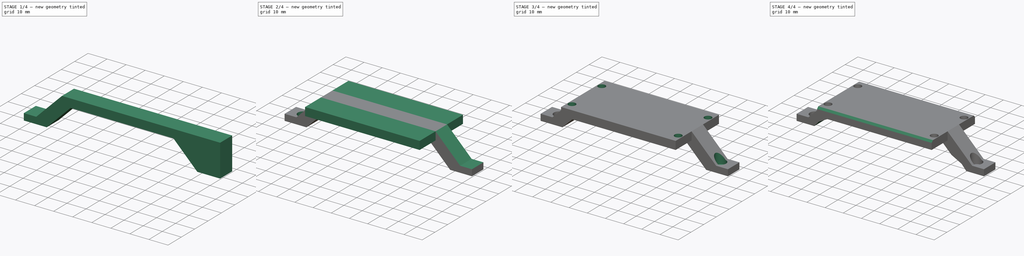
[diagram: build sequence overview — one tinted view per stage of 4, left to right]
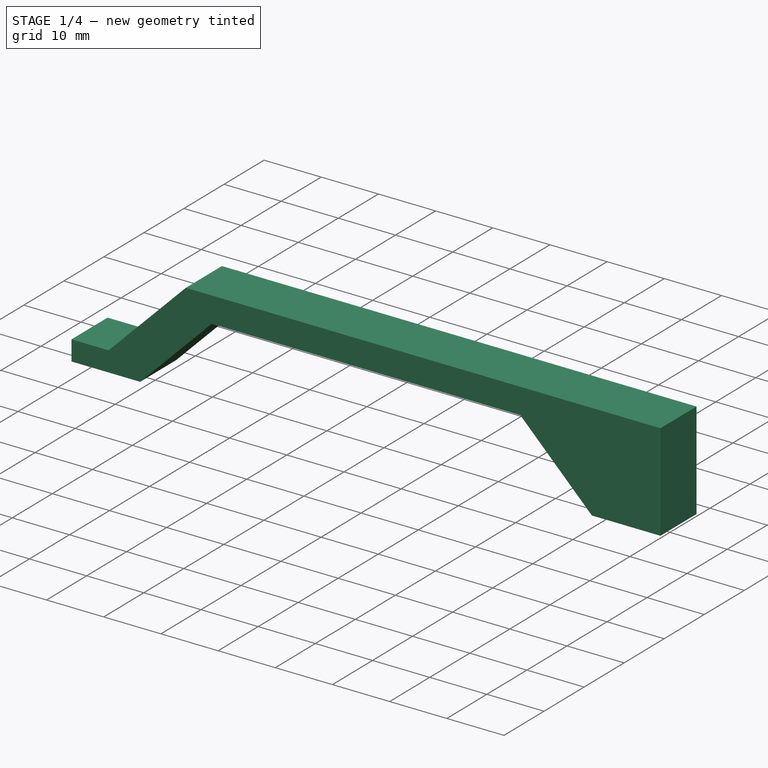
[diagram: stage 1 of 4 — iso view after this stage's code; geometry added in this stage tinted green]
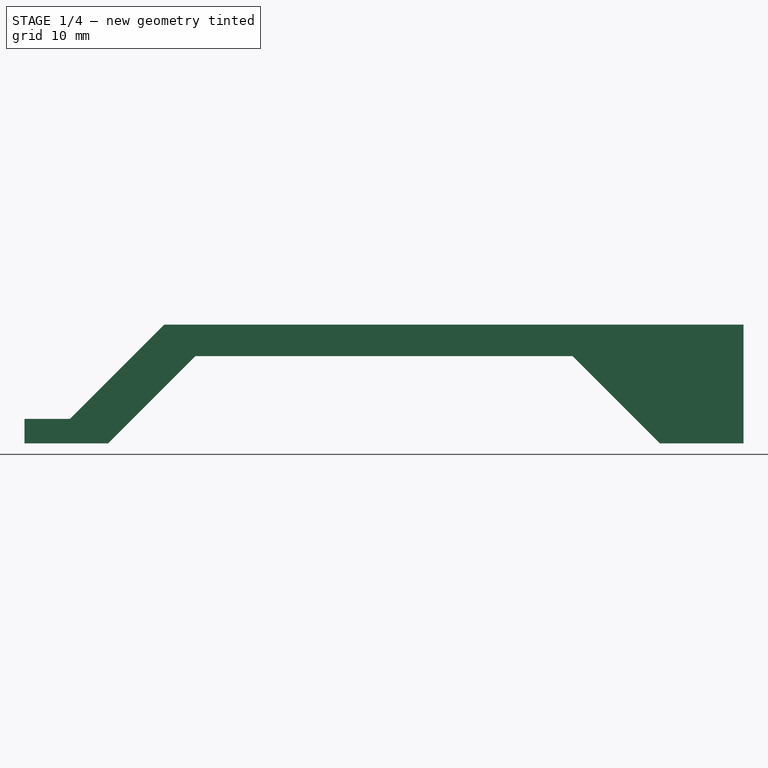
[diagram: stage 1 of 4 — front view after this stage's code; geometry added in this stage tinted green]
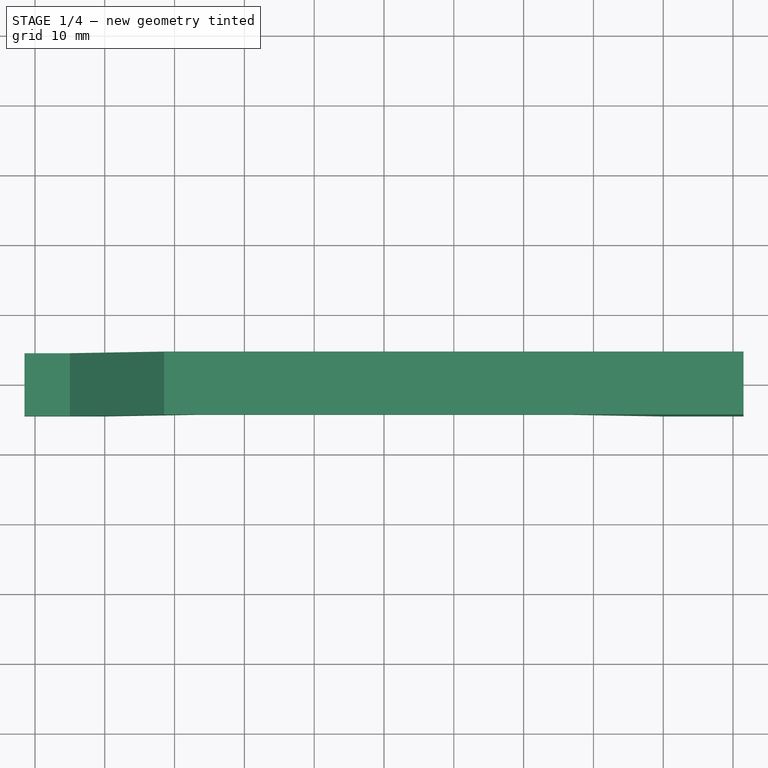
[diagram: stage 1 of 4 — top view after this stage's code; geometry added in this stage tinted green]
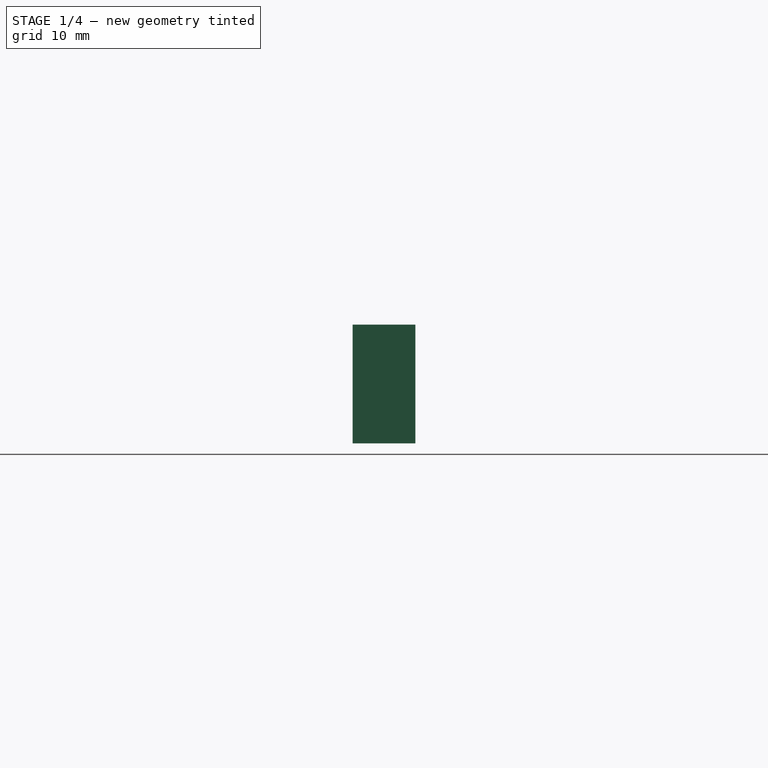
[diagram: stage 1 of 4 — right view after this stage's code; geometry added in this stage tinted green]
FCSTD DOCUMENT  (FreeCAD 0.20R29410 (Git))
Label: Case_back
License: All rights reserved
LicenseURL: http://en.wikipedia.org/wiki/All_rights_reserved
objects: Sketcher::SketchObject×8, PartDesign::Pocket×6, PartDesign::Mirrored×5, PartDesign::Pad×2, PartDesign::Plane×1, PartDesign::MultiTransform×1, PartDesign::Chamfer×1, PartDesign::Body×1
note: 34 computed .brp shape members not serialized (recipe doc carries the construction recipe); baked Part::Feature solids carry a one-line shape summary decoded from their .brp

FEATURE [Sketcher::SketchObject] Sketch
  FullyConstrained = true
  MapMode = 5
  Support = -> [XY_Plane]
  sketch-geometry (10):
    g0: LineSegment StartX=-52 StartY=-5 StartZ=0 EndX=-52 EndY=5 EndZ=0
    g1: LineSegment StartX=-52 StartY=5 StartZ=0 EndX=52 EndY=5 EndZ=0
    g2: LineSegment StartX=52 StartY=5 StartZ=0 EndX=52 EndY=-5 EndZ=0
    g3: LineSegment StartX=52 StartY=-5 StartZ=0 EndX=-52 EndY=-5 EndZ=0
    g4: GeomPoint X=0 Y=0 Z=0
    g5: LineSegment StartX=51.5 StartY=-4.5 StartZ=0 EndX=51.5 EndY=4.5 EndZ=0
    g6: LineSegment StartX=51.5 StartY=4.5 StartZ=0 EndX=-51.5 EndY=4.5 EndZ=0
    g7: LineSegment StartX=-51.5 StartY=4.5 StartZ=0 EndX=-51.5 EndY=-4.5 EndZ=0
    g8: LineSegment StartX=-51.5 StartY=-4.5 StartZ=0 EndX=51.5 EndY=-4.5 EndZ=0
    g9: GeomPoint X=0 Y=0 Z=0
  constraints (24):
    c: Coincident(g0,g1)
    c: Coincident(g1,g2)
    c: Coincident(g2,g3)
    c: Coincident(g3,g0)
    c: Horizontal(g1)
    c: Horizontal(g3)
    c: Vertical(g0)
    c: Vertical(g2)
    c: Symmetric(g1,g0,g4)
    c: Coincident(g4,g-1)
    c: DistanceX(g1,g1) = 104
    c: DistanceY(g0,g0) = 10
    c: Coincident(g5,g6)
    c: Coincident(g6,g7)
    c: Coincident(g7,g8)
    c: Coincident(g8,g5)
    c: Horizontal(g6)
    c: Horizontal(g8)
    c: Vertical(g5)
    c: Vertical(g7)
    c: Symmetric(g6,g5,g9)
    c: Coincident(g9,g4)
    c: DistanceY(g6,g0) = 0.5
    c: DistanceX(g0,g6) = 0.5
FEATURE [PartDesign::Pad] Pad
  Direction = (0,0,1)
  Length = 17
  Length2 = 10
  Profile = -> Sketch
  ReferenceAxis = -> Sketch [N_Axis]
  Type = 0
FEATURE [Sketcher::SketchObject] Sketch001
  FullyConstrained = true
  MapMode = 5
  Placement = pos=(0,0,0) rot=(1,0,0;1.5708rad)
  Support = -> [XZ_Plane]
  sketch-geometry (4):
    g0: LineSegment StartX=-39.5 StartY=0 StartZ=0 EndX=-27 EndY=12.5 EndZ=0
    g1: LineSegment StartX=-27 StartY=12.5 StartZ=0 EndX=27 EndY=12.5 EndZ=0
    g2: LineSegment StartX=27 StartY=12.5 StartZ=0 EndX=39.5 EndY=0 EndZ=0
    g3: LineSegment StartX=39.5 StartY=0 StartZ=0 EndX=-39.5 EndY=0 EndZ=0
  constraints (10):
    c: PointOnObject(g0,g-1)
    c: Coincident(g0,g1)
    c: Coincident(g1,g2)
    c: Coincident(g2,g3)
    c: Coincident(g3,g0)
    c: DistanceY(g0) = 12.5
    c: Symmetric(g2,g0,g-2)
    c: Symmetric(g1,g0,g-2)
    c: DistanceX(g3,g3) = 79
    c: Angle(g3,g0) = 0.785398
FEATURE [PartDesign::Pocket] Pocket
  BaseFeature = -> Pad
  Direction = (0,1,-2e-16)
  Length = 11
  Length2 = 5
  Midplane = true
  Profile = -> Sketch001
  ReferenceAxis = -> Sketch001 [N_Axis]
  Type = 0
FEATURE [Sketcher::SketchObject] Sketch002
  FullyConstrained = false
  MapMode = 5
  Placement = pos=(0,0,0) rot=(1,0,0;1.5708rad)
  Support = -> [XZ_Plane]
  sketch-geometry (4):
    g0: LineSegment StartX=-51.88 StartY=3.5 StartZ=0 EndX=-45 EndY=3.5 EndZ=0
    g1: LineSegment StartX=-45 StartY=3.5 StartZ=0 EndX=-31 EndY=17.5 EndZ=0
    g2: LineSegment StartX=-31 StartY=17.5 StartZ=0 EndX=-51.88 EndY=17.5 EndZ=0
    g3: LineSegment StartX=-51.88 StartY=17.5 StartZ=0 EndX=-51.88 EndY=3.5 EndZ=0
  constraints (11):
    c: Horizontal(g0)
    c: Coincident(g0,g1)
    c: Coincident(g1,g2)
    c: Horizontal(g2)
    c: Coincident(g2,g3)
    c: Coincident(g3,g0)
    c: Angle(g-1,g1) = 0.785398
    c: Vertical(g3)
    c: DistanceY(g0) = 3.5
    c: DistanceX(g0) = -45
    c: DistanceY(g3,g3) = 14
FEATURE [PartDesign::Pocket] Pocket001
  BaseFeature = -> Pocket
  Direction = (0,1,-2e-16)
  Length = 9
  Length2 = 5
  Midplane = true
  Profile = -> Sketch002
  ReferenceAxis = -> Sketch002 [N_Axis]
  Type = 0
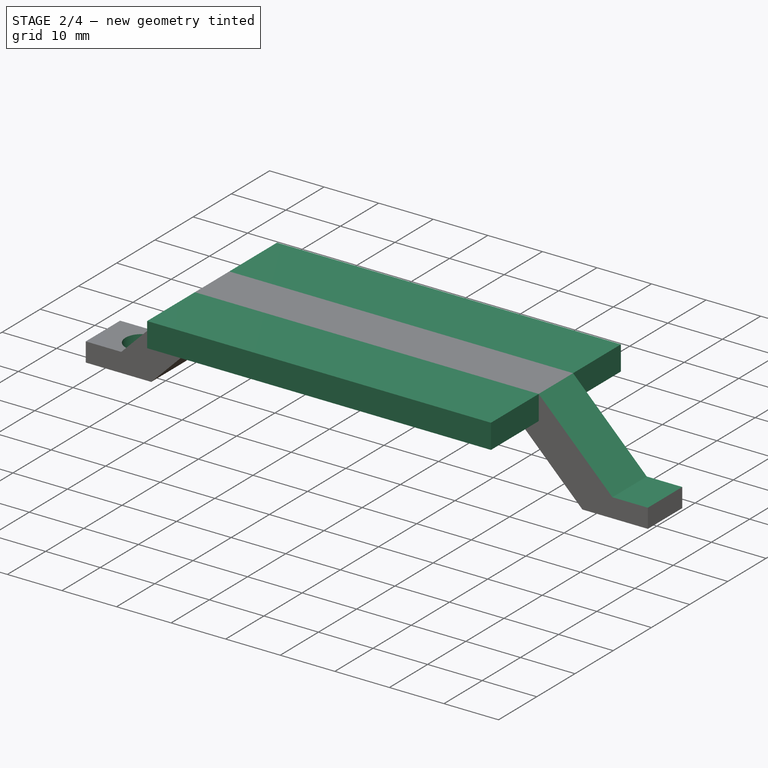
[diagram: stage 2 of 4 — iso view after this stage's code; geometry added in this stage tinted green]
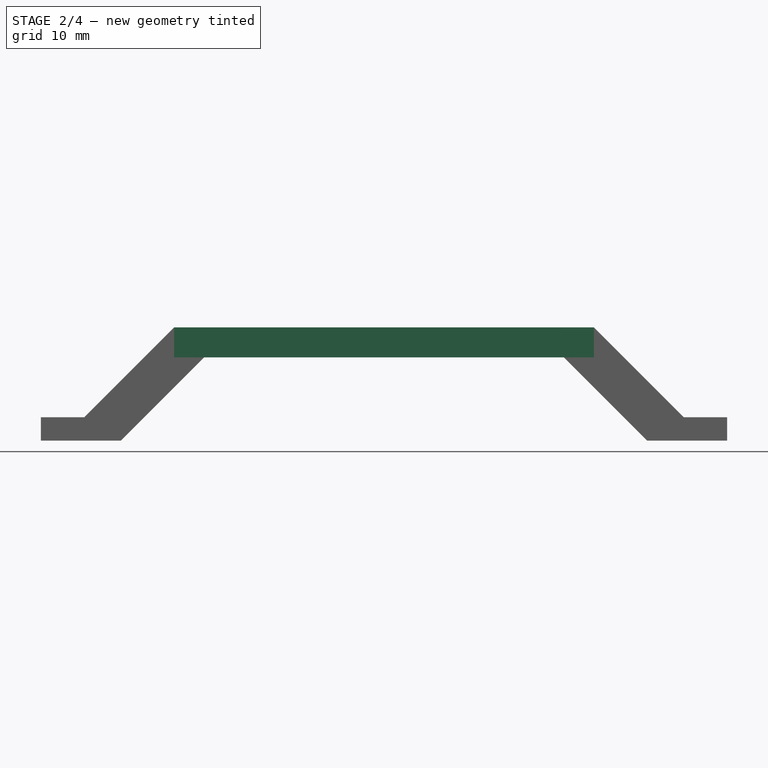
[diagram: stage 2 of 4 — front view after this stage's code; geometry added in this stage tinted green]
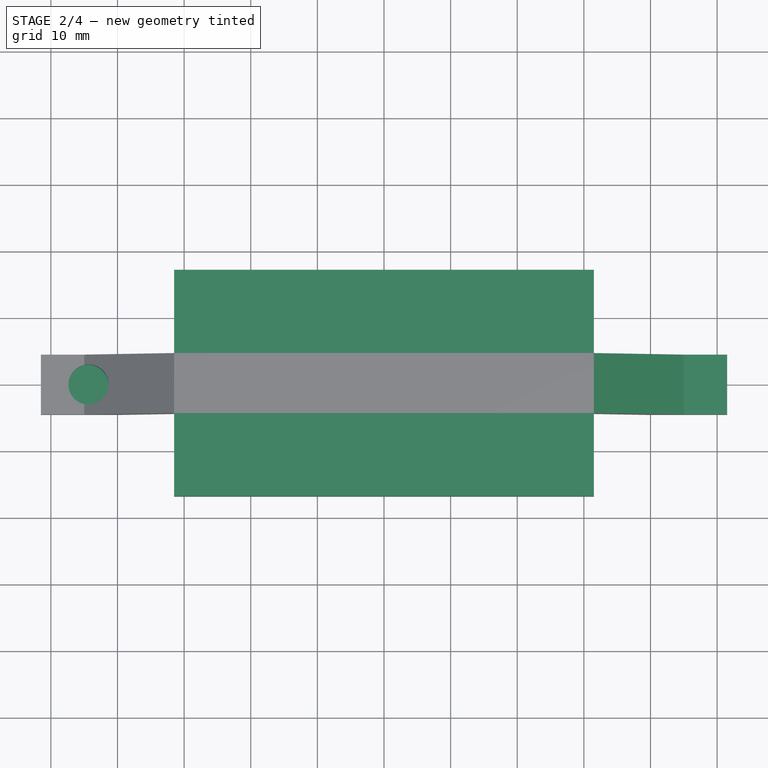
[diagram: stage 2 of 4 — top view after this stage's code; geometry added in this stage tinted green]
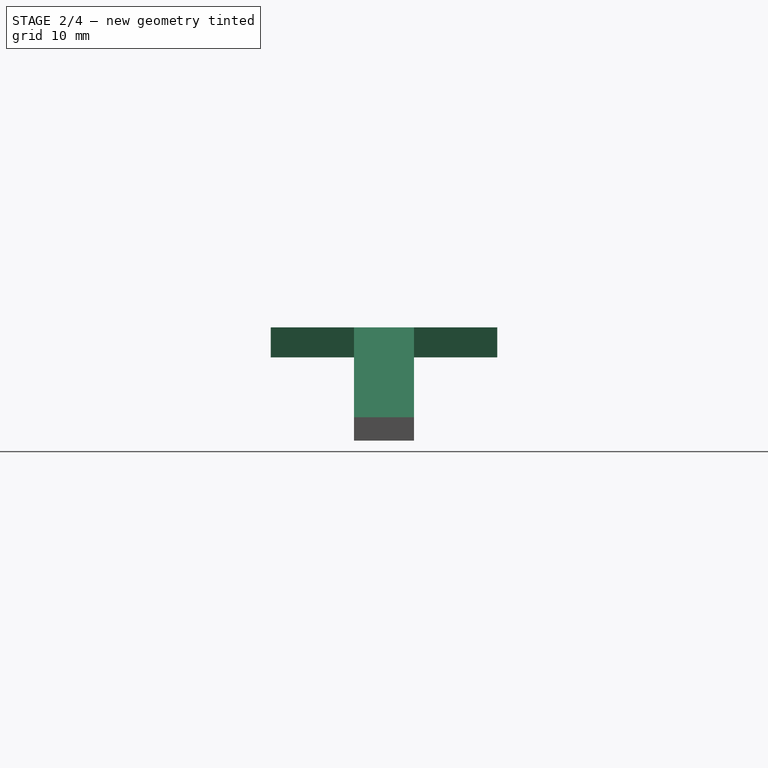
[diagram: stage 2 of 4 — right view after this stage's code; geometry added in this stage tinted green]
FEATURE [PartDesign::Mirrored] Mirrored
  BaseFeature = -> Pocket001
  MirrorPlane = -> Sketch002 [V_Axis]
  Originals = -> [Pocket001]
FEATURE [Sketcher::SketchObject] Sketch003
  ExternalGeometry = -> [Mirrored]
  FullyConstrained = true
  MapMode = 5
  Placement = pos=(0,0,0) rot=(1,0,0;1.5708rad)
  Support = -> [XZ_Plane]
  sketch-geometry (4):
    g0: LineSegment StartX=-31.5 StartY=17 StartZ=0 EndX=31.5 EndY=17 EndZ=0
    g1: LineSegment StartX=-31.5 StartY=17 StartZ=0 EndX=-31.5 EndY=12.5 EndZ=0
    g2: LineSegment StartX=31.5 StartY=17 StartZ=0 EndX=31.5 EndY=12.5 EndZ=0
    g3: LineSegment StartX=-31.5 StartY=12.5 StartZ=0 EndX=31.5 EndY=12.5 EndZ=0
  constraints (10):
    c: Coincident(g0,g-3)
    c: Coincident(g0,g-3)
    c: Coincident(g0,g1)
    c: Vertical(g1)
    c: Coincident(g0,g2)
    c: Vertical(g2)
    c: Coincident(g1,g3)
    c: Coincident(g3,g2)
    c: Horizontal(g3)
    c: Horizontal(g2,g-4)
FEATURE [PartDesign::Pad] Pad001
  BaseFeature = -> Mirrored
  Direction = (0,-1,2e-16)
  Length = 34
  Length2 = 10
  Midplane = true
  Profile = -> Sketch003
  ReferenceAxis = -> Sketch003 [N_Axis]
  Type = 0
FEATURE [PartDesign::Plane] DatumPlane
  AttachmentOffset = pos=(0,0,3.5) rot=(0,0,1;0rad)
  Length = 60
  MapMode = 5
  Placement = pos=(0,0,3.5) rot=(0,0,1;0rad)
  ResizeMode = 0
  Support = -> [XY_Plane]
  Width = 60
FEATURE [Sketcher::SketchObject] Sketch005
  FullyConstrained = false
  MapMode = 5
  Placement = pos=(0,0,3.5) rot=(0,0,1;0rad)
  Support = -> [DatumPlane]
  sketch-geometry (2):
    g0: LineSegment StartX=-41.37 StartY=4.44191 StartZ=0 EndX=-41.37 EndY=-5.04619 EndZ=0
    g1: Circle CenterX=-44.37 CenterY=0 CenterZ=0 NormalX=0 NormalY=0 NormalZ=1 AngleXU=0 Radius=3
  constraints (5):
    c: Vertical(g0)
    c: PointOnObject(g1,g-1)
    c: Tangent(g1,g0)
    c: Diameter(g1) = 6
    c: DistanceX(g1) = -44.37
FEATURE [PartDesign::Pocket] Pocket002
  BaseFeature = -> Pad001
  Direction = (0,0,-1)
  Length = 2.5
  Length2 = 5
  Profile = -> Sketch005
  ReferenceAxis = -> Sketch005 [N_Axis]
  Type = 4
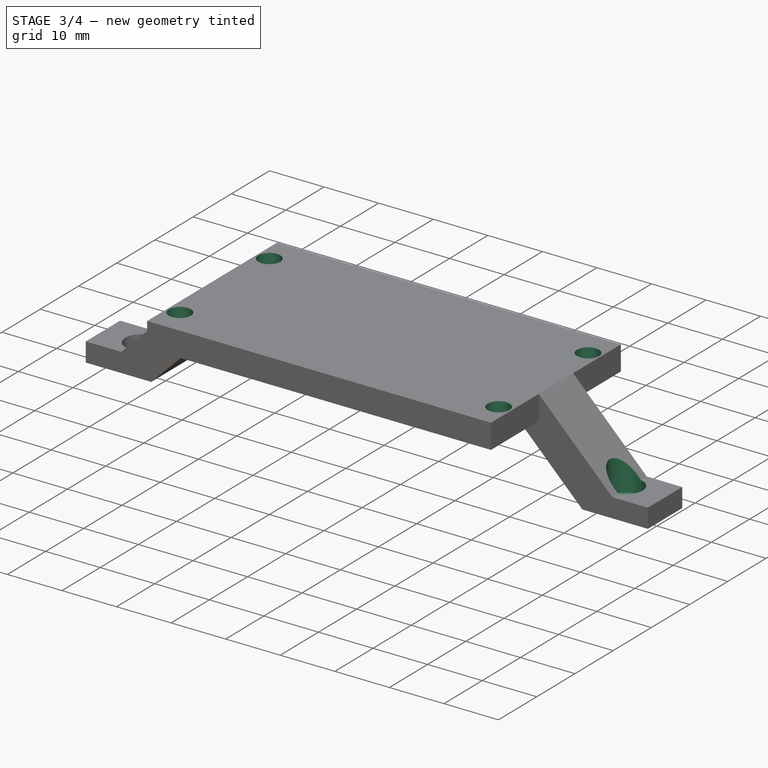
[diagram: stage 3 of 4 — iso view after this stage's code; geometry added in this stage tinted green]
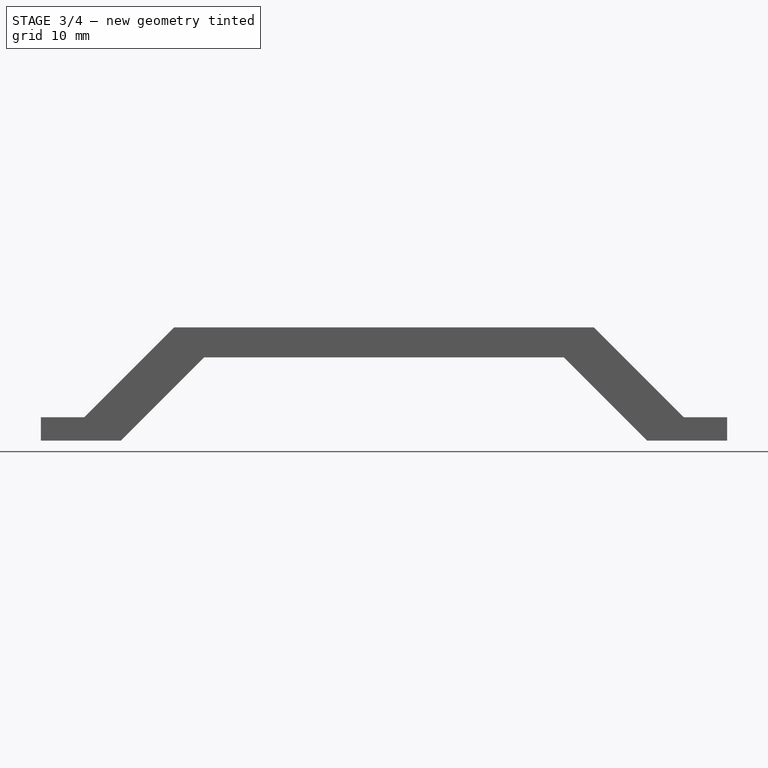
[diagram: stage 3 of 4 — front view after this stage's code; geometry added in this stage tinted green]
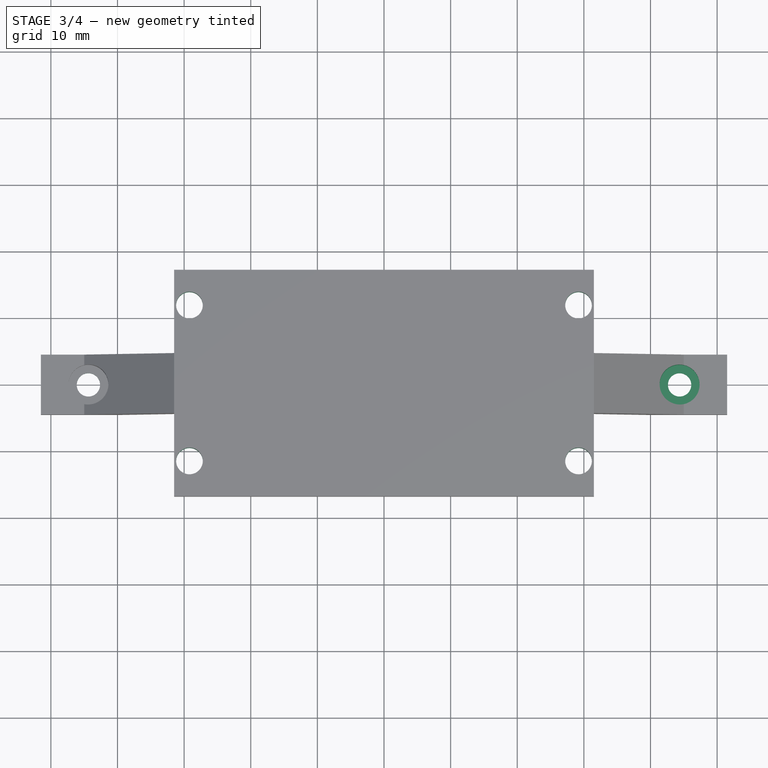
[diagram: stage 3 of 4 — top view after this stage's code; geometry added in this stage tinted green]
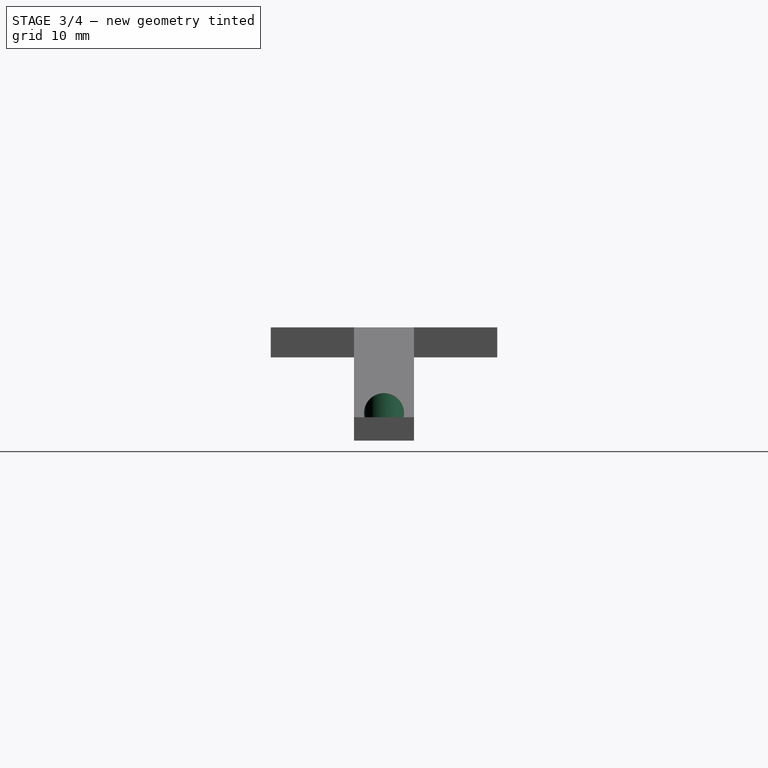
[diagram: stage 3 of 4 — right view after this stage's code; geometry added in this stage tinted green]
FEATURE [Sketcher::SketchObject] Sketch006
  ExternalGeometry = -> [Pocket002]
  FullyConstrained = true
  MapMode = 5
  Placement = pos=(0,0,3.5) rot=(0,0,1;0rad)
  Support = -> [DatumPlane]
  sketch-geometry (1):
    g0: Circle CenterX=-44.37 CenterY=0 CenterZ=0 NormalX=0 NormalY=0 NormalZ=1 AngleXU=0 Radius=1.75
  constraints (2):
    c: Diameter(g0) = 3.5
    c: Coincident(g0,g-5)
FEATURE [PartDesign::Pocket] Pocket003
  BaseFeature = -> Pocket002
  Direction = (0,0,-1)
  Length = 5
  Length2 = 5
  Profile = -> Sketch006
  ReferenceAxis = -> Sketch006 [N_Axis]
  Type = 0
FEATURE [PartDesign::Mirrored] Mirrored001
  BaseFeature = -> Pocket003
  MirrorPlane = -> Sketch006 [V_Axis]
  Originals = -> [Pocket003,Pocket002]
FEATURE [Sketcher::SketchObject] Sketch007
  FullyConstrained = true
  MapMode = 5
  Support = -> [XY_Plane]
  sketch-geometry (6):
    g0: LineSegment StartX=-29.2 StartY=-11.7 StartZ=0 EndX=-29.2 EndY=11.7 EndZ=0
    g1: LineSegment StartX=-29.2 StartY=11.7 StartZ=0 EndX=29.2 EndY=11.7 EndZ=0
    g2: LineSegment StartX=29.2 StartY=11.7 StartZ=0 EndX=29.2 EndY=-11.7 EndZ=0
    g3: LineSegment StartX=29.2 StartY=-11.7 StartZ=0 EndX=-29.2 EndY=-11.7 EndZ=0
    g4: GeomPoint X=0 Y=0 Z=0
    g5: Circle CenterX=-29.2 CenterY=11.7 CenterZ=0 NormalX=0 NormalY=0 NormalZ=1 AngleXU=0 Radius=2
  constraints (14):
    c: Coincident(g0,g1)
    c: Coincident(g1,g2)
    c: Coincident(g2,g3)
    c: Coincident(g3,g0)
    c: Horizontal(g1)
    c: Horizontal(g3)
    c: Vertical(g0)
    c: Vertical(g2)
    c: Symmetric(g1,g0,g4)
    c: Coincident(g4,g-1)
    c: DistanceX(g1,g1) = 58.4
    c: DistanceY(g0,g0) = 23.4
    c: Coincident(g5,g0)
    c: Diameter(g5) = 4
FEATURE [PartDesign::Pocket] Pocket004
  BaseFeature = -> Mirrored001
  Direction = (0,0,-1)
  Length = 28
  Length2 = 5
  Profile = -> Sketch007
  ReferenceAxis = -> Sketch007 [N_Axis]
  Reversed = true
  Type = 0
FEATURE [PartDesign::Mirrored] Mirrored002
  MirrorPlane = -> Sketch007 [V_Axis]
FEATURE [PartDesign::Mirrored] Mirrored003
  MirrorPlane = -> XZ_Plane
FEATURE [PartDesign::MultiTransform] MultiTransform
  BaseFeature = -> Pocket004
  Originals = -> [Pocket004]
  Refine = true
  Transformations = -> [Mirrored002,Mirrored003]
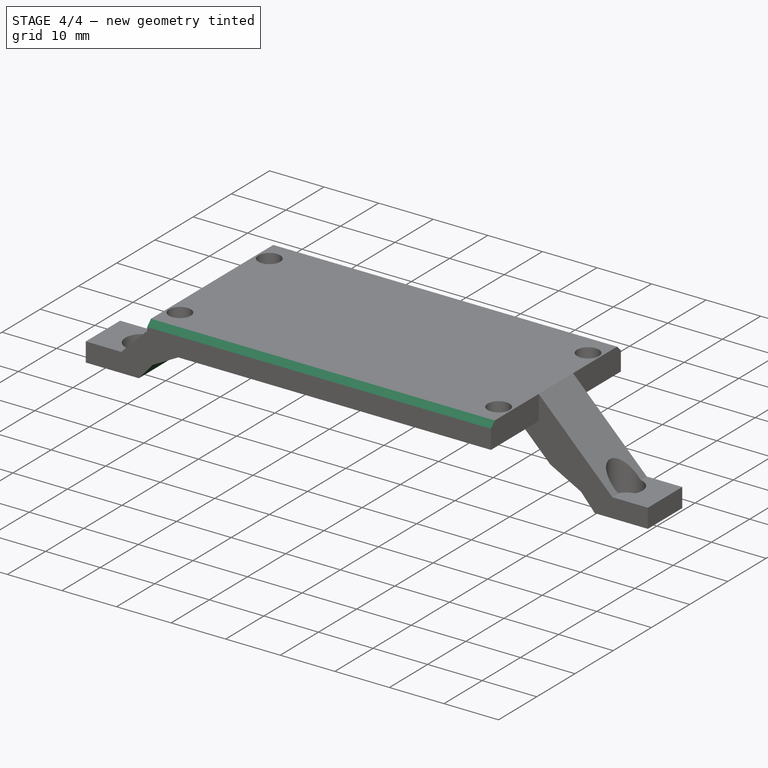
[diagram: stage 4 of 4 — iso view after this stage's code; geometry added in this stage tinted green]
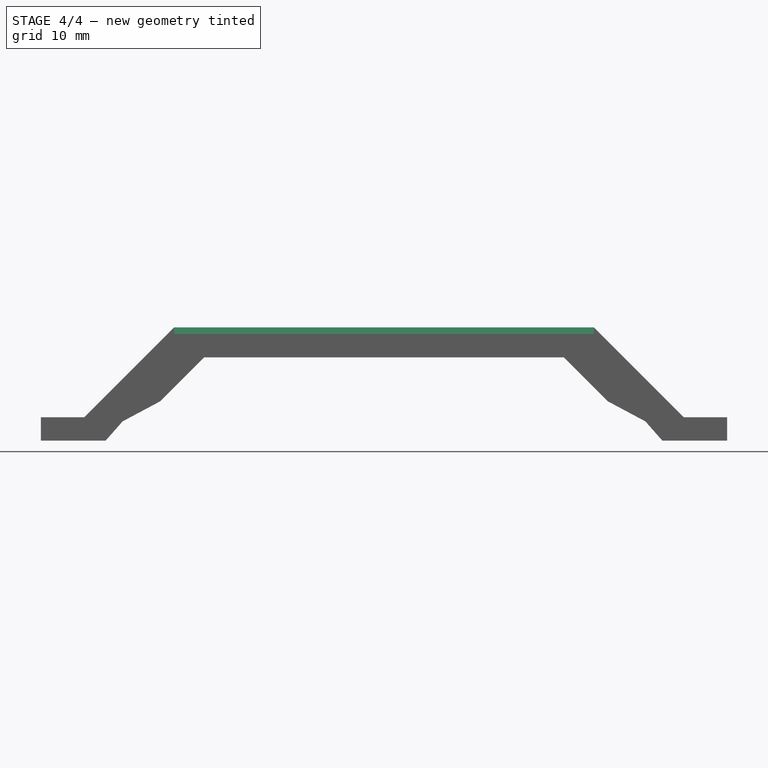
[diagram: stage 4 of 4 — front view after this stage's code; geometry added in this stage tinted green]
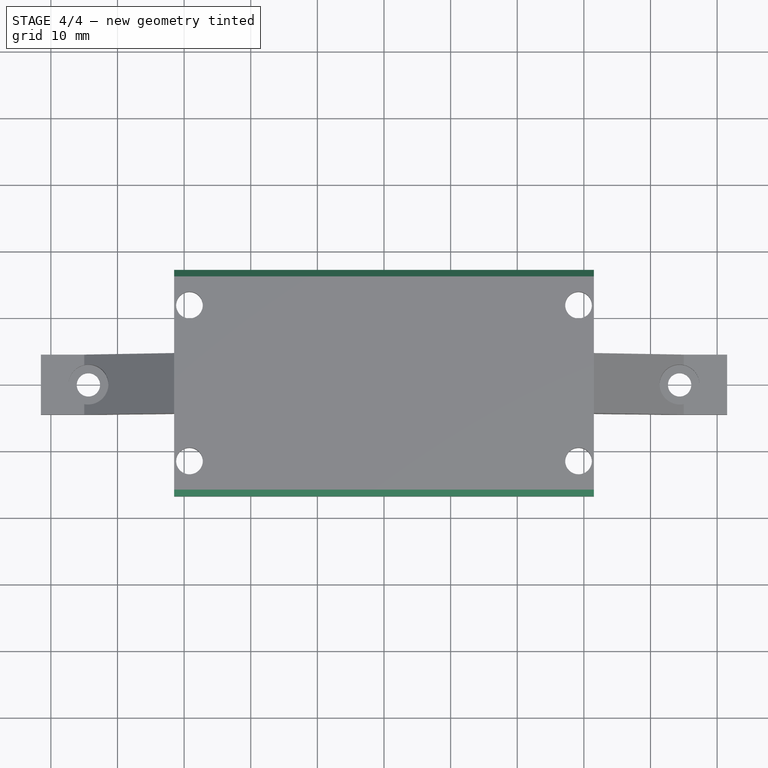
[diagram: stage 4 of 4 — top view after this stage's code; geometry added in this stage tinted green]
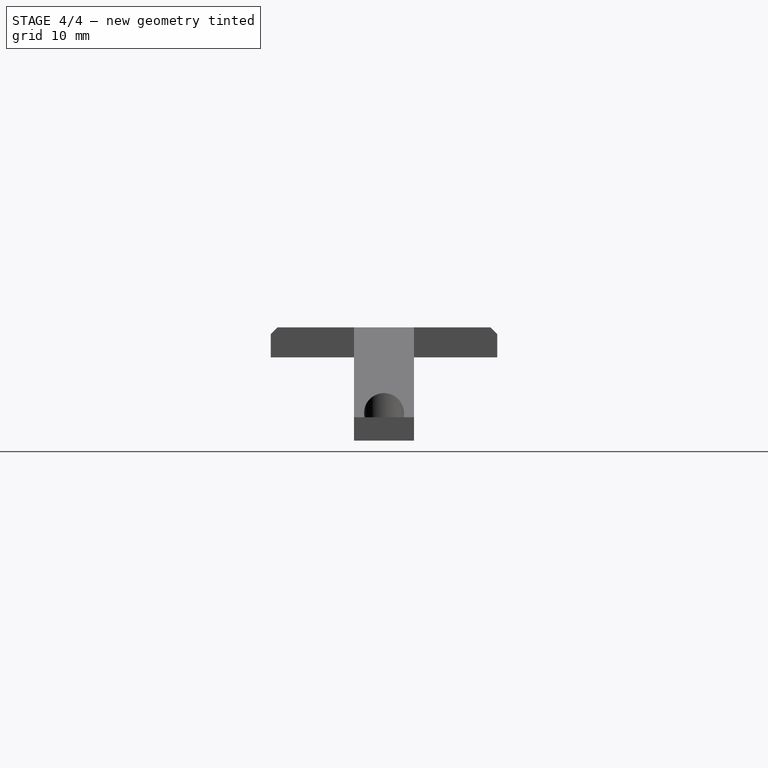
[diagram: stage 4 of 4 — right view after this stage's code; geometry added in this stage tinted green]
FEATURE [Sketcher::SketchObject] Sketch008
  FullyConstrained = false
  MapMode = 5
  Placement = pos=(0,0,0) rot=(1,0,0;1.5708rad)
  Support = -> [XZ_Plane]
  sketch-geometry (4):
    g0: LineSegment StartX=-41.7786 StartY=0 StartZ=0 EndX=-39.2434 EndY=2.88512 EndZ=0
    g1: LineSegment StartX=-39.2434 StartY=2.88512 StartZ=0 EndX=-33.2864 EndY=6.06738 EndZ=0
    g2: LineSegment StartX=-33.2864 StartY=6.06738 StartZ=0 EndX=-33.2864 EndY=0 EndZ=0
    g3: LineSegment StartX=-33.2864 StartY=0 StartZ=0 EndX=-41.7786 EndY=0 EndZ=0
  constraints (7):
    c: PointOnObject(g0,g-1)
    c: Coincident(g0,g1)
    c: Coincident(g1,g2)
    c: Vertical(g2)
    c: Coincident(g2,g3)
    c: Coincident(g3,g0)
    c: Horizontal(g3)
FEATURE [PartDesign::Pocket] Pocket005
  BaseFeature = -> MultiTransform
  Direction = (0,1,2e-16)
  Length = 14
  Length2 = 5
  Midplane = true
  Profile = -> Sketch008
  ReferenceAxis = -> Sketch008 [N_Axis]
  Type = 0
FEATURE [PartDesign::Mirrored] Mirrored004
  BaseFeature = -> Pocket005
  MirrorPlane = -> Sketch008 [V_Axis]
  Originals = -> [Pocket005]
FEATURE [PartDesign::Chamfer] Chamfer
  Angle = 45
  Base = -> Mirrored004 [Edge72,Edge49]
  BaseFeature = -> Mirrored004
  ChamferType = 0
  FlipDirection = false
  Size = 1
  Size2 = 1
  SupportTransform = false
  UseAllEdges = false
FEATURE [PartDesign::Body] Body
  Group = -> [Sketch,Pad,Sketch001,Pocket,Sketch002,Pocket001,Mirrored,Sketch003,Pad001,DatumPlane,Sketch005,Pocket002,Sketch006,Pocket003,Mirrored001,Sketch007,Pocket004,MultiTransform,Mirrored002,Mirrored003,Sketch008,Pocket005,Mirrored004,Chamfer]
  Origin = -> Origin
  Tip = -> Chamfer
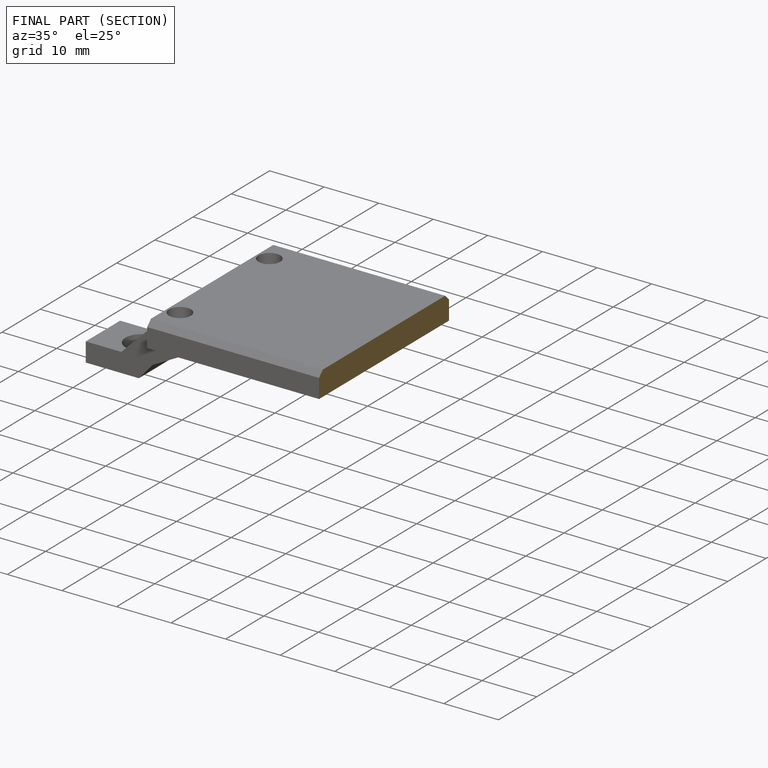
[diagram: finished part — half-section view (interior)]
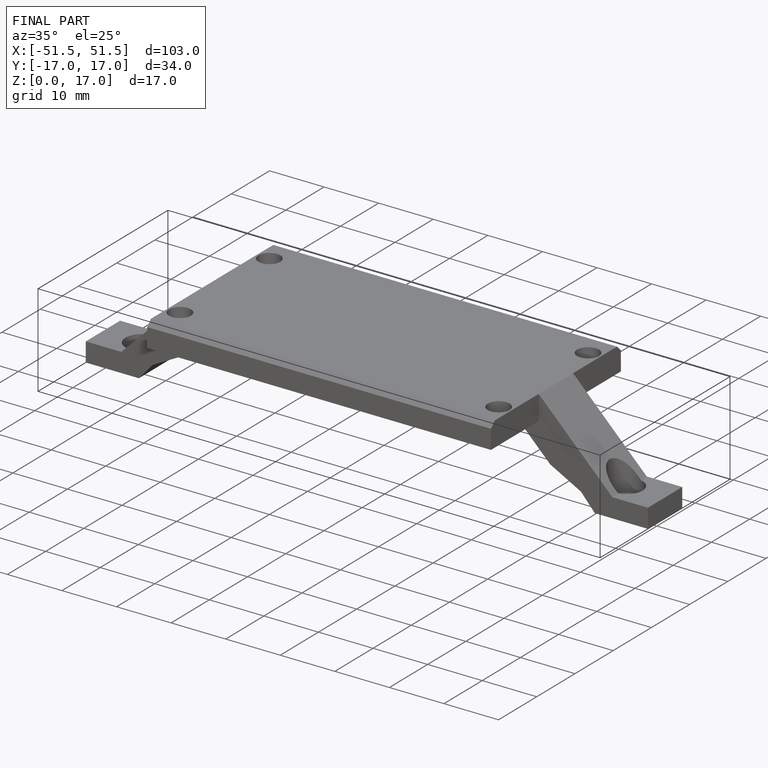
[diagram: finished part — iso view with bounding-box wireframe]
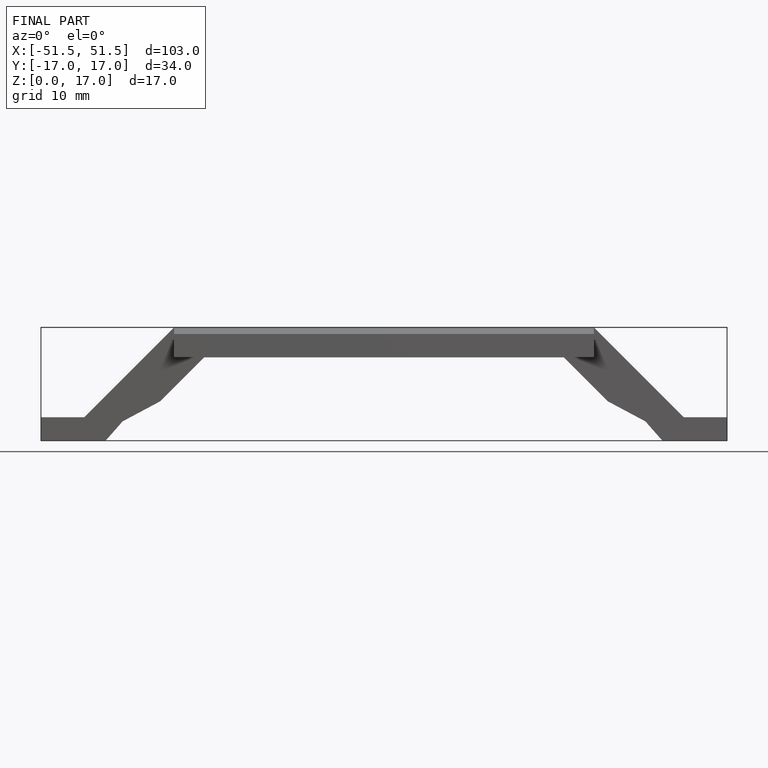
[diagram: finished part — front view with bounding-box wireframe]
